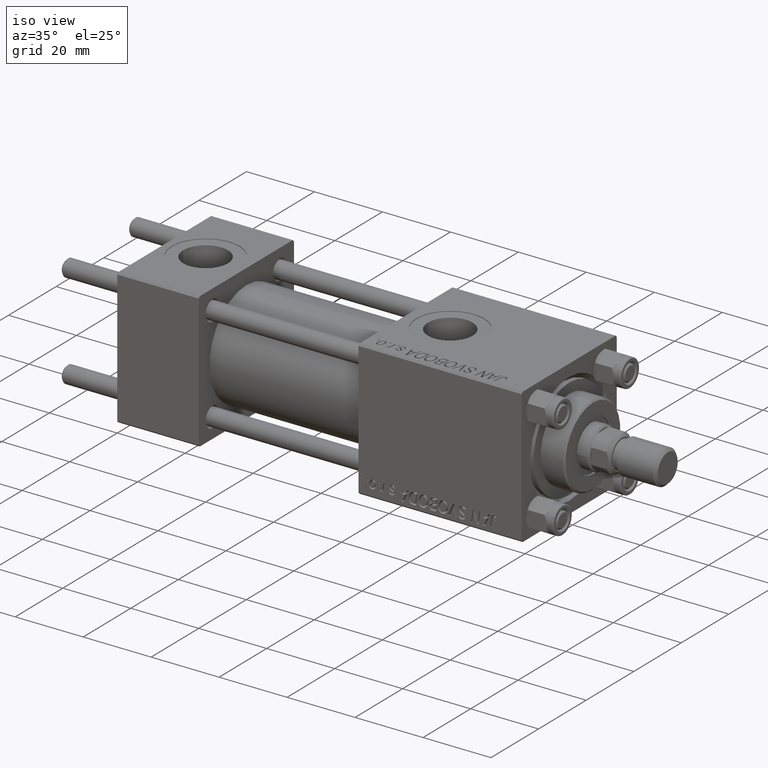
[diagram: clean part render]
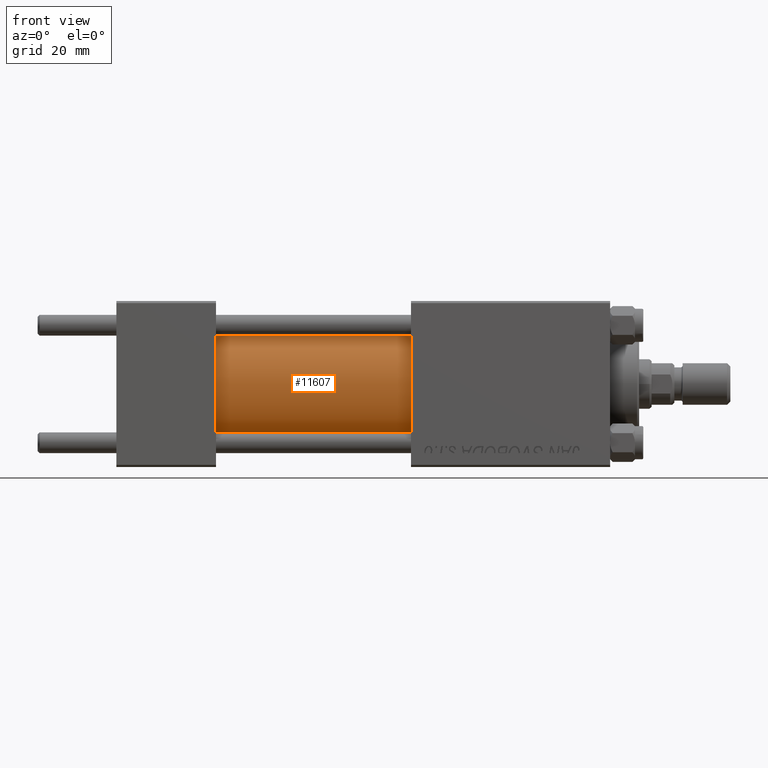
[diagram: tour spotlight — one face highlighted and labeled with its STEP entity id]
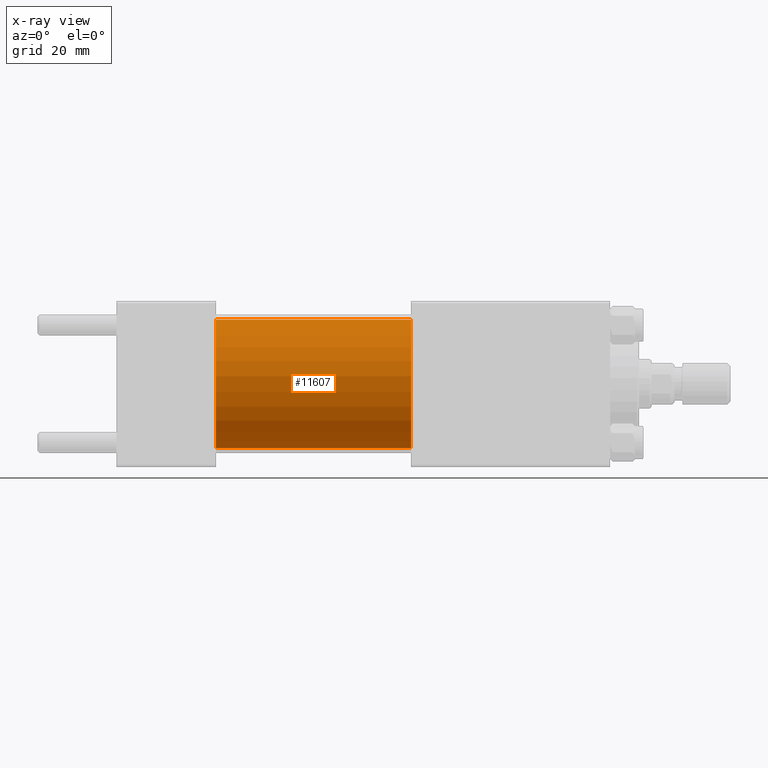
[diagram: x-ray of the same camera — body ghosted, this tour face saturated]
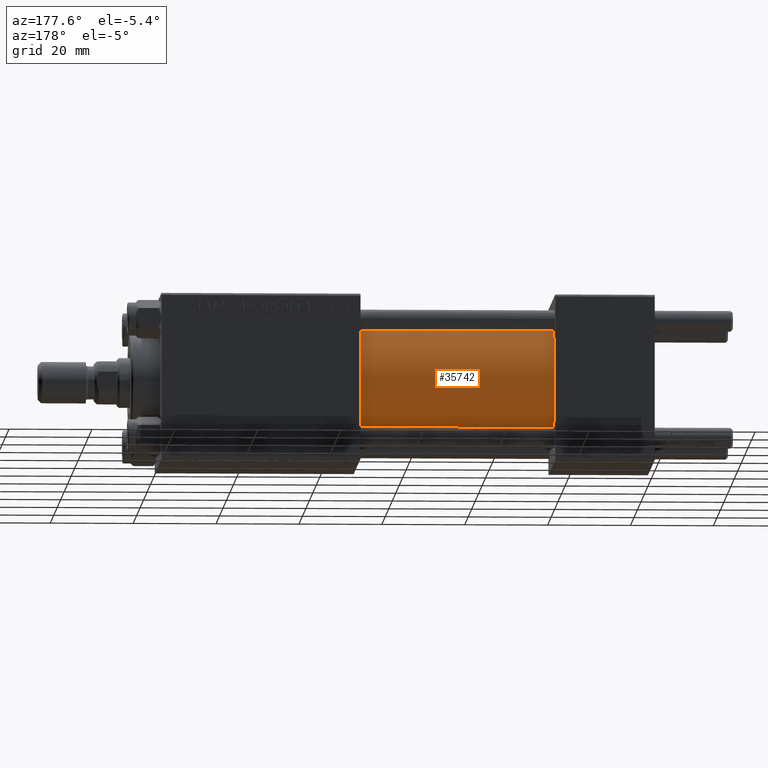
[diagram: tour spotlight — one face highlighted and labeled with its STEP entity id]
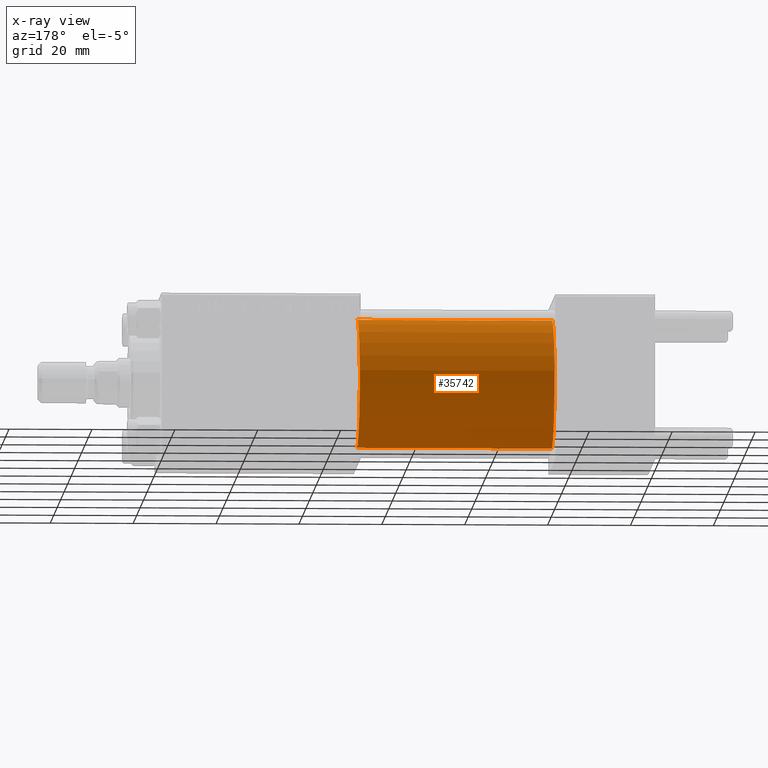
[diagram: x-ray of the same camera — body ghosted, this tour face saturated]
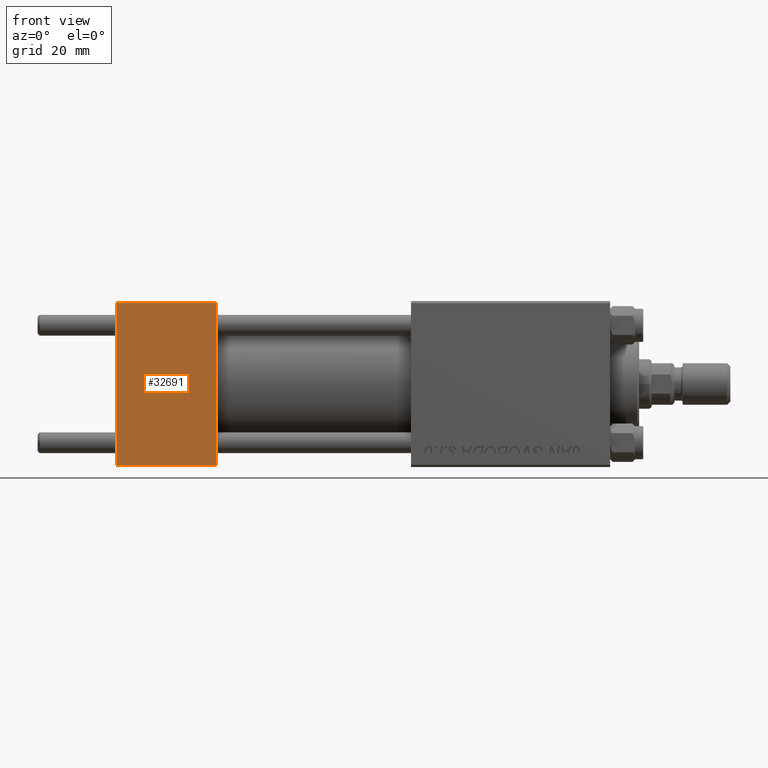
[diagram: tour spotlight — one face highlighted and labeled with its STEP entity id]
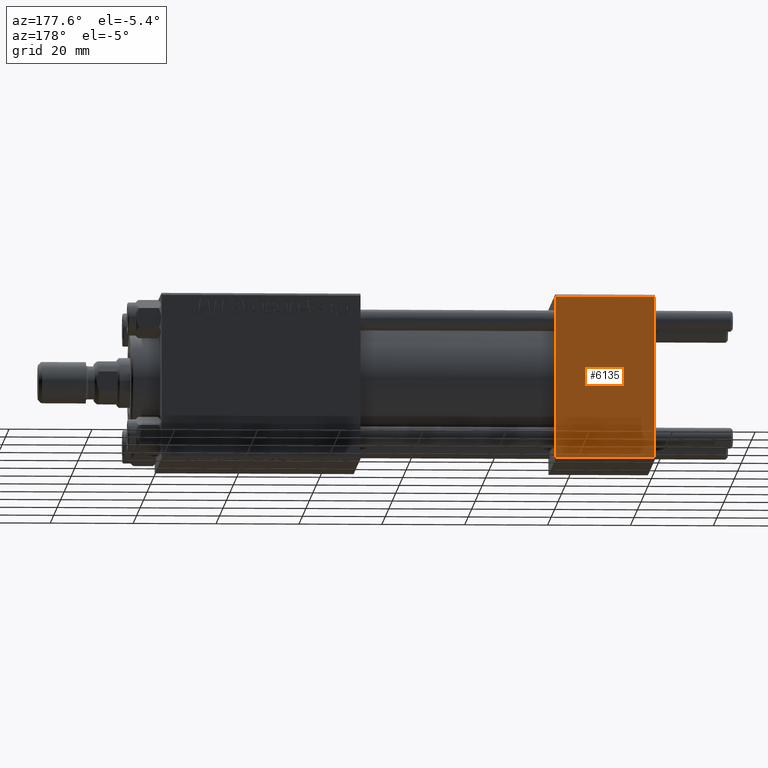
[diagram: tour spotlight — one face highlighted and labeled with its STEP entity id]
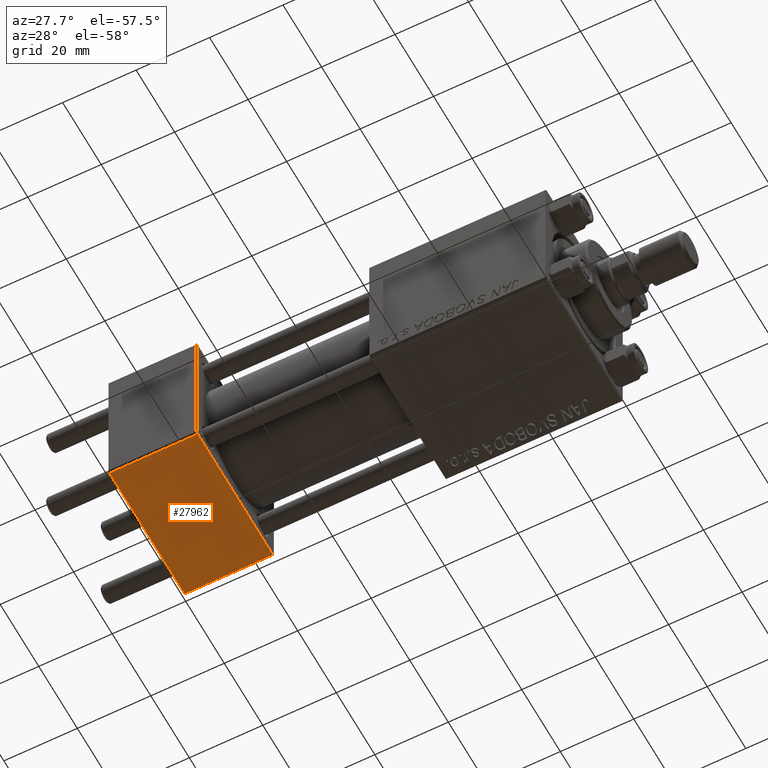
[diagram: tour spotlight — one face highlighted and labeled with its STEP entity id]
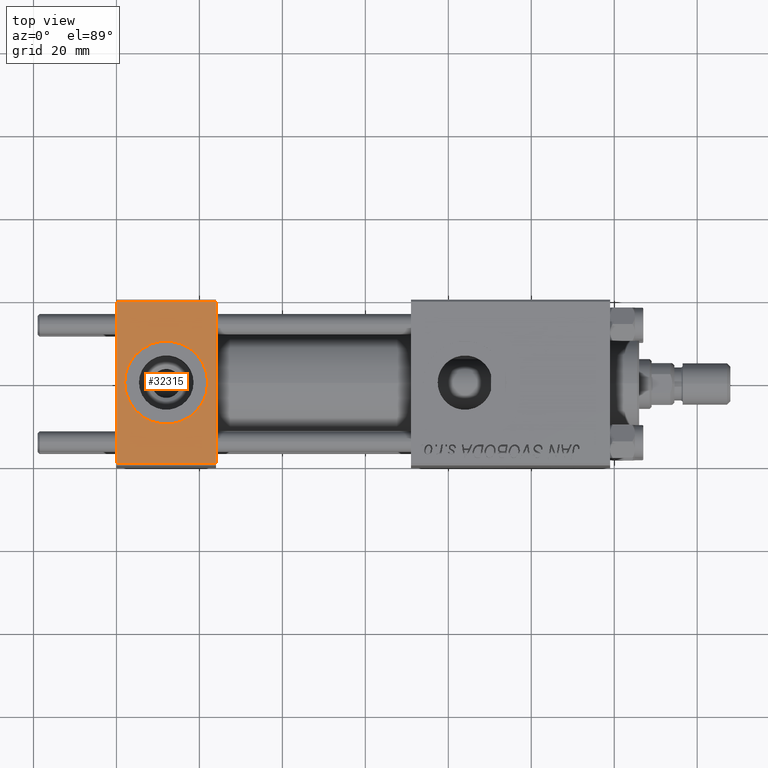
[diagram: tour spotlight — one face highlighted and labeled with its STEP entity id]
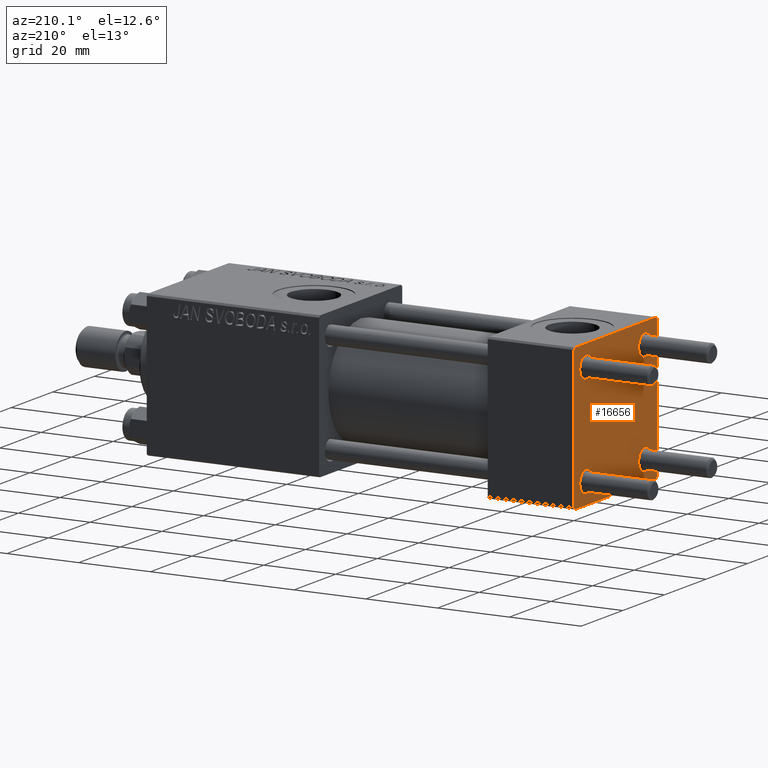
[diagram: tour spotlight — one face highlighted and labeled with its STEP entity id]
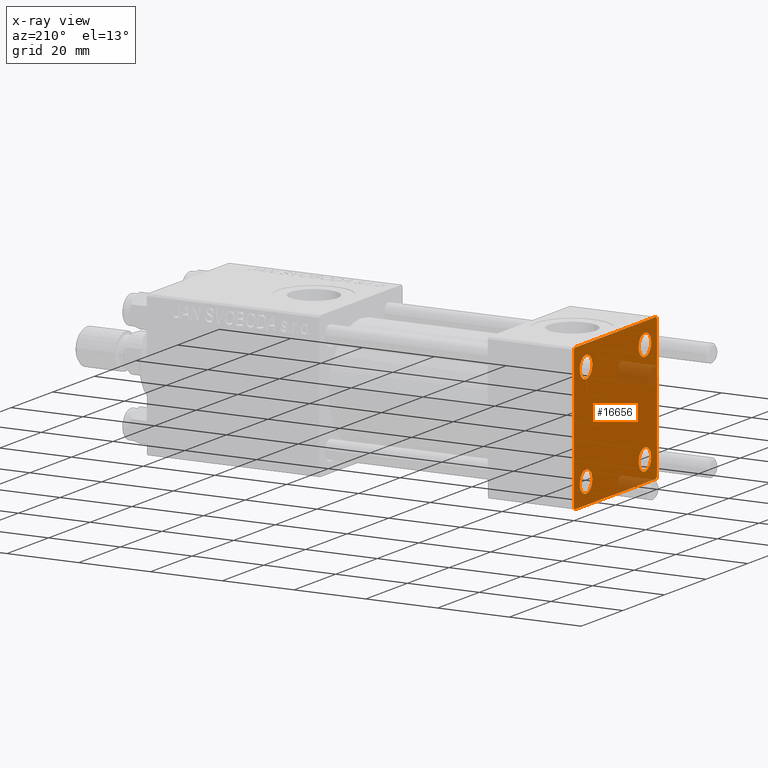
[diagram: x-ray of the same camera — body ghosted, this tour face saturated]
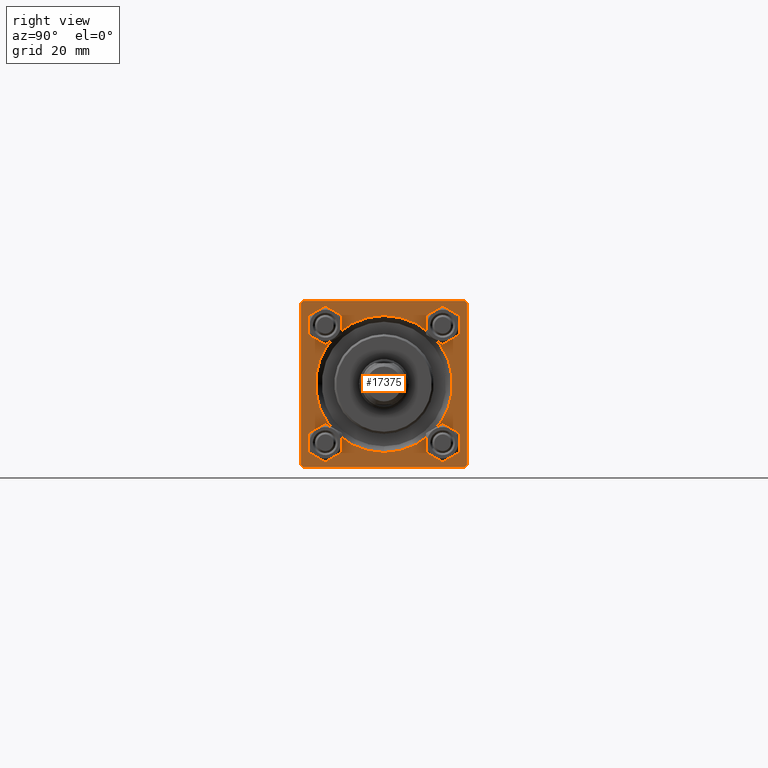
[diagram: tour spotlight — one face highlighted and labeled with its STEP entity id]
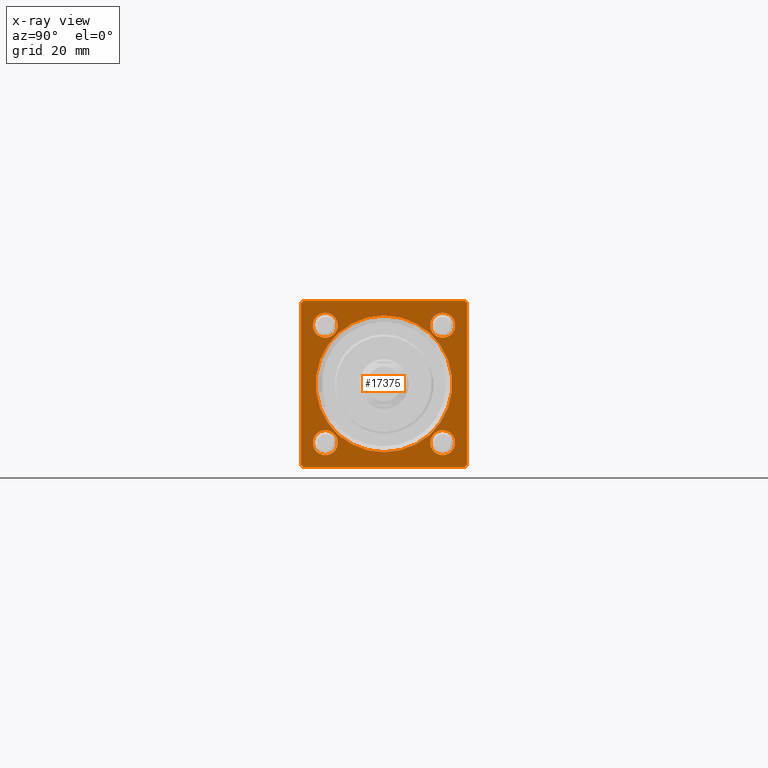
[diagram: x-ray of the same camera — body ghosted, this tour face saturated]
A machine part: a face-by-face anatomy tour. The part has 1145 B-rep faces; the first image is the clean iso view, then the 8 largest visible faces are spotlighted one at a time (largest first), each with its STEP entity span.

Face 1 — front view, entity #11607. An x-ray twin of the same camera follows (body ghosted, this face saturated) — the face is partly hidden behind the body. In plain terms, the highlighted cylindrical surface (partial cylindrical patch) has radius 15.5 mm, axis along (-1, -0, -0).
Definition (entity closure, byte-faithful):
#291 = AXIS2_PLACEMENT_3D ( 'NONE', #20581, #5864, #48775 ) ;
#795 = CARTESIAN_POINT ( 'NONE',  ( 24.00000000000000000, 0.000000000000000000, 15.50000000000000000 ) ) ;
#2607 = EDGE_CURVE ( 'NONE', #48295, #33412, #24450, .T. ) ;
#2724 = EDGE_CURVE ( 'NONE', #8842, #10512, #36654, .T. ) ;
#5454 = CARTESIAN_POINT ( 'NONE',  ( 71.00000000000001421, 0.000000000000000000, 15.50000000000000000 ) ) ;
#5864 = DIRECTION ( 'NONE',  ( -1.000000000000000000, -0.000000000000000000, -0.000000000000000000 ) ) ;
#6940 = LINE ( 'NONE', #22427, #11238 ) ;
#8355 = DIRECTION ( 'NONE',  ( 1.000000000000000000, 0.000000000000000000, 0.000000000000000000 ) ) ;
#8842 = VERTEX_POINT ( 'NONE', #5454 ) ;
#10508 = ORIENTED_EDGE ( 'NONE', *, *, #2724, .F. ) ;
#10512 = VERTEX_POINT ( 'NONE', #26277 ) ;
#11238 = VECTOR ( 'NONE', #18858, 1000.000000000000000 ) ;
#11607 = ADVANCED_FACE ( 'NONE', ( #28220 ), #43704, .T. ) ;
#14765 = AXIS2_PLACEMENT_3D ( 'NONE', #27169, #8355, #30969 ) ;
#14970 = DIRECTION ( 'NONE',  ( -1.000000000000000000, -0.000000000000000000, -0.000000000000000000 ) ) ;
#15545 = AXIS2_PLACEMENT_3D ( 'NONE', #39900, #16809, #43973 ) ;
#16809 = DIRECTION ( 'NONE',  ( 1.000000000000000000, 0.000000000000000000, 0.000000000000000000 ) ) ;
#18301 = ORIENTED_EDGE ( 'NONE', *, *, #33577, .T. ) ;
#18858 = DIRECTION ( 'NONE',  ( -1.000000000000000000, -0.000000000000000000, -0.000000000000000000 ) ) ;
#20581 = CARTESIAN_POINT ( 'NONE',  ( 71.00000000000001421, 0.000000000000000000, 0.000000000000000000 ) ) ;
#22427 = CARTESIAN_POINT ( 'NONE',  ( 71.00000000000001421, 1.898202538678397557E-15, -15.50000000000000000 ) ) ;
#24317 = EDGE_LOOP ( 'NONE', ( #40742, #10508, #18301, #27526 ) ) ;
#24450 = CIRCLE ( 'NONE', #15545, 15.50000000000000000 ) ;
#26277 = CARTESIAN_POINT ( 'NONE',  ( 71.00000000000001421, 1.898202538678397557E-15, -15.50000000000000000 ) ) ;
#27169 = CARTESIAN_POINT ( 'NONE',  ( 71.00000000000001421, 0.000000000000000000, 0.000000000000000000 ) ) ;
#27526 = ORIENTED_EDGE ( 'NONE', *, *, #2607, .T. ) ;
#28220 = FACE_OUTER_BOUND ( 'NONE', #24317, .T. ) ;
#30969 = DIRECTION ( 'NONE',  ( 0.000000000000000000, 0.000000000000000000, -1.000000000000000000 ) ) ;
#33412 = VERTEX_POINT ( 'NONE', #44465 ) ;
#33577 = EDGE_CURVE ( 'NONE', #8842, #48295, #42372, .T. ) ;
#36005 = VECTOR ( 'NONE', #14970, 1000.000000000000000 ) ;
#36654 = CIRCLE ( 'NONE', #14765, 15.50000000000000000 ) ;
#39900 = CARTESIAN_POINT ( 'NONE',  ( 24.00000000000000000, 0.000000000000000000, 0.000000000000000000 ) ) ;
#40742 = ORIENTED_EDGE ( 'NONE', *, *, #48768, .F. ) ;
#42372 = LINE ( 'NONE', #50005, #36005 ) ;
#43704 = CYLINDRICAL_SURFACE ( 'NONE', #291, 15.50000000000000000 ) ;
#43973 = DIRECTION ( 'NONE',  ( 0.000000000000000000, 0.000000000000000000, 1.000000000000000000 ) ) ;
#44465 = CARTESIAN_POINT ( 'NONE',  ( 24.00000000000000000, 1.898202538678397557E-15, -15.50000000000000000 ) ) ;
#48295 = VERTEX_POINT ( 'NONE', #795 ) ;
#48768 = EDGE_CURVE ( 'NONE', #10512, #33412, #6940, .T. ) ;
#48775 = DIRECTION ( 'NONE',  ( 0.000000000000000000, 0.000000000000000000, 1.000000000000000000 ) ) ;
#50005 = CARTESIAN_POINT ( 'NONE',  ( 71.00000000000001421, 0.000000000000000000, 15.50000000000000000 ) ) ;

Face 2 — auxiliary view, entity #35742. An x-ray twin of the same camera follows (body ghosted, this face saturated) — the face is partly hidden behind the body. In plain terms, the highlighted cylindrical surface (partial cylindrical patch) has radius 15.5 mm, axis along (-1, -0, -0).
Definition (entity closure, byte-faithful):
#795 = CARTESIAN_POINT ( 'NONE',  ( 24.00000000000000000, 0.000000000000000000, 15.50000000000000000 ) ) ;
#2900 = CIRCLE ( 'NONE', #32913, 15.50000000000000000 ) ;
#5454 = CARTESIAN_POINT ( 'NONE',  ( 71.00000000000001421, 0.000000000000000000, 15.50000000000000000 ) ) ;
#6511 = DIRECTION ( 'NONE',  ( 0.000000000000000000, 0.000000000000000000, 1.000000000000000000 ) ) ;
#6940 = LINE ( 'NONE', #22427, #11238 ) ;
#7861 = EDGE_LOOP ( 'NONE', ( #42481, #37962, #18616, #18997 ) ) ;
#8842 = VERTEX_POINT ( 'NONE', #5454 ) ;
#10512 = VERTEX_POINT ( 'NONE', #26277 ) ;
#11238 = VECTOR ( 'NONE', #18858, 1000.000000000000000 ) ;
#11747 = DIRECTION ( 'NONE',  ( 1.000000000000000000, 0.000000000000000000, 0.000000000000000000 ) ) ;
#14970 = DIRECTION ( 'NONE',  ( -1.000000000000000000, -0.000000000000000000, -0.000000000000000000 ) ) ;
#14995 = FACE_OUTER_BOUND ( 'NONE', #7861, .T. ) ;
#16220 = EDGE_CURVE ( 'NONE', #33412, #48295, #2900, .T. ) ;
#18616 = ORIENTED_EDGE ( 'NONE', *, *, #16220, .T. ) ;
#18858 = DIRECTION ( 'NONE',  ( -1.000000000000000000, -0.000000000000000000, -0.000000000000000000 ) ) ;
#18997 = ORIENTED_EDGE ( 'NONE', *, *, #33577, .F. ) ;
#22427 = CARTESIAN_POINT ( 'NONE',  ( 71.00000000000001421, 1.898202538678397557E-15, -15.50000000000000000 ) ) ;
#22854 = CYLINDRICAL_SURFACE ( 'NONE', #36075, 15.50000000000000000 ) ;
#26277 = CARTESIAN_POINT ( 'NONE',  ( 71.00000000000001421, 1.898202538678397557E-15, -15.50000000000000000 ) ) ;
#30966 = CARTESIAN_POINT ( 'NONE',  ( 71.00000000000001421, 0.000000000000000000, 0.000000000000000000 ) ) ;
#32913 = AXIS2_PLACEMENT_3D ( 'NONE', #41314, #38006, #6511 ) ;
#33412 = VERTEX_POINT ( 'NONE', #44465 ) ;
#33577 = EDGE_CURVE ( 'NONE', #8842, #48295, #42372, .T. ) ;
#35027 = DIRECTION ( 'NONE',  ( -1.000000000000000000, -0.000000000000000000, -0.000000000000000000 ) ) ;
#35742 = ADVANCED_FACE ( 'NONE', ( #14995 ), #22854, .T. ) ;
#36005 = VECTOR ( 'NONE', #14970, 1000.000000000000000 ) ;
#36075 = AXIS2_PLACEMENT_3D ( 'NONE', #30966, #35027, #46454 ) ;
#37962 = ORIENTED_EDGE ( 'NONE', *, *, #48768, .T. ) ;
#38006 = DIRECTION ( 'NONE',  ( 1.000000000000000000, 0.000000000000000000, 0.000000000000000000 ) ) ;
#40367 = DIRECTION ( 'NONE',  ( 0.000000000000000000, 0.000000000000000000, -1.000000000000000000 ) ) ;
#41314 = CARTESIAN_POINT ( 'NONE',  ( 24.00000000000000000, 0.000000000000000000, 0.000000000000000000 ) ) ;
#42372 = LINE ( 'NONE', #50005, #36005 ) ;
#42481 = ORIENTED_EDGE ( 'NONE', *, *, #45520, .F. ) ;
#43566 = AXIS2_PLACEMENT_3D ( 'NONE', #46527, #11747, #40367 ) ;
#44387 = CIRCLE ( 'NONE', #43566, 15.50000000000000000 ) ;
#44465 = CARTESIAN_POINT ( 'NONE',  ( 24.00000000000000000, 1.898202538678397557E-15, -15.50000000000000000 ) ) ;
#45520 = EDGE_CURVE ( 'NONE', #10512, #8842, #44387, .T. ) ;
#46454 = DIRECTION ( 'NONE',  ( 0.000000000000000000, 0.000000000000000000, 1.000000000000000000 ) ) ;
#46527 = CARTESIAN_POINT ( 'NONE',  ( 71.00000000000001421, 0.000000000000000000, 0.000000000000000000 ) ) ;
#48295 = VERTEX_POINT ( 'NONE', #795 ) ;
#48768 = EDGE_CURVE ( 'NONE', #10512, #33412, #6940, .T. ) ;
#50005 = CARTESIAN_POINT ( 'NONE',  ( 71.00000000000001421, 0.000000000000000000, 15.50000000000000000 ) ) ;

Face 3 — front view, entity #32691. In plain terms, the highlighted planar face has unit normal (0, 1, 0).
Definition (entity closure, byte-faithful):
#2523 = ORIENTED_EDGE ( 'NONE', *, *, #32508, .F. ) ;
#3542 = ORIENTED_EDGE ( 'NONE', *, *, #25534, .T. ) ;
#3761 = FACE_OUTER_BOUND ( 'NONE', #47376, .T. ) ;
#4310 = VERTEX_POINT ( 'NONE', #27063 ) ;
#6103 = CARTESIAN_POINT ( 'NONE',  ( 24.00000000000000000, -20.00000000000000355, 19.99999999999998934 ) ) ;
#6275 = CARTESIAN_POINT ( 'NONE',  ( 0.000000000000000000, -20.00000000000000355, 19.49999999999998224 ) ) ;
#6993 = ORIENTED_EDGE ( 'NONE', *, *, #45697, .T. ) ;
#8174 = LINE ( 'NONE', #11759, #8257 ) ;
#8257 = VECTOR ( 'NONE', #19124, 1000.000000000000000 ) ;
#8515 = ORIENTED_EDGE ( 'NONE', *, *, #45421, .T. ) ;
#10923 = CARTESIAN_POINT ( 'NONE',  ( 24.00000000000000000, -20.00000000000000355, 19.49999999999998224 ) ) ;
#11138 = VECTOR ( 'NONE', #28523, 1000.000000000000000 ) ;
#11643 = CARTESIAN_POINT ( 'NONE',  ( 24.00000000000000000, -20.00000000000000355, 19.99999999999998934 ) ) ;
#11759 = CARTESIAN_POINT ( 'NONE',  ( 0.000000000000000000, -20.00000000000000355, 19.99999999999998934 ) ) ;
#13031 = CARTESIAN_POINT ( 'NONE',  ( 24.00000000000000000, -20.00000000000000355, 19.49999999999998224 ) ) ;
#13971 = LINE ( 'NONE', #6103, #29491 ) ;
#14797 = VERTEX_POINT ( 'NONE', #10923 ) ;
#15984 = VECTOR ( 'NONE', #19606, 1000.000000000000000 ) ;
#16060 = CARTESIAN_POINT ( 'NONE',  ( 24.00000000000000000, -20.00000000000000000, -19.49999999999999645 ) ) ;
#19124 = DIRECTION ( 'NONE',  ( 0.000000000000000000, 8.673617379884036705E-17, -1.000000000000000000 ) ) ;
#19606 = DIRECTION ( 'NONE',  ( 1.000000000000000000, 0.000000000000000000, 0.000000000000000000 ) ) ;
#21148 = LINE ( 'NONE', #13031, #11138 ) ;
#25035 = VERTEX_POINT ( 'NONE', #6275 ) ;
#25534 = EDGE_CURVE ( 'NONE', #25035, #39391, #8174, .T. ) ;
#27063 = CARTESIAN_POINT ( 'NONE',  ( 24.00000000000000000, -20.00000000000000000, -19.49999999999999645 ) ) ;
#27132 = DIRECTION ( 'NONE',  ( -0.000000000000000000, 1.000000000000000000, 8.673617379884036705E-17 ) ) ;
#28523 = DIRECTION ( 'NONE',  ( -1.000000000000000000, 0.000000000000000000, 0.000000000000000000 ) ) ;
#29491 = VECTOR ( 'NONE', #36837, 1000.000000000000000 ) ;
#31697 = PLANE ( 'NONE',  #33548 ) ;
#32508 = EDGE_CURVE ( 'NONE', #14797, #4310, #13971, .T. ) ;
#32691 = ADVANCED_FACE ( 'NONE', ( #3761 ), #31697, .F. ) ;
#33548 = AXIS2_PLACEMENT_3D ( 'NONE', #11643, #27132, #42620 ) ;
#36837 = DIRECTION ( 'NONE',  ( 0.000000000000000000, 8.673617379884036705E-17, -1.000000000000000000 ) ) ;
#39391 = VERTEX_POINT ( 'NONE', #48575 ) ;
#42620 = DIRECTION ( 'NONE',  ( 0.000000000000000000, -8.673617379884036705E-17, 1.000000000000000000 ) ) ;
#45421 = EDGE_CURVE ( 'NONE', #39391, #4310, #50109, .T. ) ;
#45697 = EDGE_CURVE ( 'NONE', #14797, #25035, #21148, .T. ) ;
#47376 = EDGE_LOOP ( 'NONE', ( #3542, #8515, #2523, #6993 ) ) ;
#48575 = CARTESIAN_POINT ( 'NONE',  ( 0.000000000000000000, -20.00000000000000000, -19.49999999999999645 ) ) ;
#50109 = LINE ( 'NONE', #16060, #15984 ) ;

Face 4 — auxiliary view, entity #6135. In plain terms, the highlighted planar face has unit normal (0, 1, 0).
Definition (entity closure, byte-faithful):
#436 = CARTESIAN_POINT ( 'NONE',  ( 0.000000000000000000, 20.00000000000000000, -19.50000000000002132 ) ) ;
#876 = LINE ( 'NONE', #12837, #8323 ) ;
#1581 = CARTESIAN_POINT ( 'NONE',  ( 24.00000000000000000, 20.00000000000000000, 19.49999999999999289 ) ) ;
#3405 = CARTESIAN_POINT ( 'NONE',  ( 24.00000000000000000, 20.00000000000000000, 20.00000000000000000 ) ) ;
#6135 = ADVANCED_FACE ( 'NONE', ( #10612 ), #11531, .T. ) ;
#7020 = LINE ( 'NONE', #10824, #26973 ) ;
#7465 = DIRECTION ( 'NONE',  ( 0.000000000000000000, -0.000000000000000000, 1.000000000000000000 ) ) ;
#8126 = DIRECTION ( 'NONE',  ( 0.000000000000000000, 0.000000000000000000, -1.000000000000000000 ) ) ;
#8323 = VECTOR ( 'NONE', #47368, 1000.000000000000000 ) ;
#10310 = DIRECTION ( 'NONE',  ( 0.000000000000000000, 0.000000000000000000, -1.000000000000000000 ) ) ;
#10612 = FACE_OUTER_BOUND ( 'NONE', #11386, .T. ) ;
#10824 = CARTESIAN_POINT ( 'NONE',  ( 24.00000000000000000, 20.00000000000000000, -19.50000000000002132 ) ) ;
#11386 = EDGE_LOOP ( 'NONE', ( #19164, #26544, #16990, #45101 ) ) ;
#11531 = PLANE ( 'NONE',  #30274 ) ;
#11613 = CARTESIAN_POINT ( 'NONE',  ( 24.00000000000000000, 20.00000000000000000, -19.50000000000002132 ) ) ;
#12313 = EDGE_CURVE ( 'NONE', #22308, #14197, #37732, .T. ) ;
#12453 = LINE ( 'NONE', #16269, #23571 ) ;
#12837 = CARTESIAN_POINT ( 'NONE',  ( 24.00000000000000000, 20.00000000000000000, 19.49999999999999289 ) ) ;
#14197 = VERTEX_POINT ( 'NONE', #11613 ) ;
#14691 = CARTESIAN_POINT ( 'NONE',  ( 0.000000000000000000, 20.00000000000000000, 19.49999999999999289 ) ) ;
#16269 = CARTESIAN_POINT ( 'NONE',  ( 0.000000000000000000, 20.00000000000000000, 20.00000000000000000 ) ) ;
#16990 = ORIENTED_EDGE ( 'NONE', *, *, #22701, .F. ) ;
#19164 = ORIENTED_EDGE ( 'NONE', *, *, #12313, .T. ) ;
#22308 = VERTEX_POINT ( 'NONE', #1581 ) ;
#22701 = EDGE_CURVE ( 'NONE', #47450, #24830, #12453, .T. ) ;
#23571 = VECTOR ( 'NONE', #8126, 1000.000000000000000 ) ;
#24830 = VERTEX_POINT ( 'NONE', #436 ) ;
#26182 = EDGE_CURVE ( 'NONE', #14197, #24830, #7020, .T. ) ;
#26544 = ORIENTED_EDGE ( 'NONE', *, *, #26182, .T. ) ;
#26973 = VECTOR ( 'NONE', #46355, 1000.000000000000000 ) ;
#27831 = EDGE_CURVE ( 'NONE', #47450, #22308, #876, .T. ) ;
#30274 = AXIS2_PLACEMENT_3D ( 'NONE', #44655, #41594, #7465 ) ;
#37732 = LINE ( 'NONE', #3405, #44918 ) ;
#41594 = DIRECTION ( 'NONE',  ( -0.000000000000000000, 1.000000000000000000, 0.000000000000000000 ) ) ;
#44655 = CARTESIAN_POINT ( 'NONE',  ( 24.00000000000000000, 20.00000000000000000, 20.00000000000000000 ) ) ;
#44918 = VECTOR ( 'NONE', #10310, 1000.000000000000000 ) ;
#45101 = ORIENTED_EDGE ( 'NONE', *, *, #27831, .T. ) ;
#46355 = DIRECTION ( 'NONE',  ( -1.000000000000000000, 0.000000000000000000, 0.000000000000000000 ) ) ;
#47368 = DIRECTION ( 'NONE',  ( 1.000000000000000000, 0.000000000000000000, 0.000000000000000000 ) ) ;
#47450 = VERTEX_POINT ( 'NONE', #14691 ) ;

Face 5 — auxiliary view, entity #27962. In plain terms, the highlighted planar face has unit normal (0, -0, -1).
Definition (entity closure, byte-faithful):
#1849 = AXIS2_PLACEMENT_3D ( 'NONE', #33899, #26030, #10036 ) ;
#2113 = LINE ( 'NONE', #24212, #7632 ) ;
#3377 = CARTESIAN_POINT ( 'NONE',  ( 24.00000000000000000, 20.00000000000000000, -20.00000000000000711 ) ) ;
#5974 = FACE_OUTER_BOUND ( 'NONE', #7072, .T. ) ;
#6637 = CARTESIAN_POINT ( 'NONE',  ( 0.000000000000000000, 19.50000000000000711, -20.00000000000000711 ) ) ;
#7072 = EDGE_LOOP ( 'NONE', ( #10545, #22254, #13686, #27895 ) ) ;
#7632 = VECTOR ( 'NONE', #9224, 1000.000000000000000 ) ;
#8913 = VERTEX_POINT ( 'NONE', #33389 ) ;
#9224 = DIRECTION ( 'NONE',  ( -1.000000000000000000, 0.000000000000000000, 0.000000000000000000 ) ) ;
#9578 = DIRECTION ( 'NONE',  ( 1.000000000000000000, 0.000000000000000000, 0.000000000000000000 ) ) ;
#9805 = DIRECTION ( 'NONE',  ( 0.000000000000000000, -1.000000000000000000, 1.734723475976807094E-16 ) ) ;
#10036 = DIRECTION ( 'NONE',  ( 0.000000000000000000, 1.000000000000000000, -1.734723475976806848E-16 ) ) ;
#10545 = ORIENTED_EDGE ( 'NONE', *, *, #46475, .F. ) ;
#12468 = VECTOR ( 'NONE', #9578, 1000.000000000000000 ) ;
#13686 = ORIENTED_EDGE ( 'NONE', *, *, #38252, .T. ) ;
#17366 = CARTESIAN_POINT ( 'NONE',  ( 24.00000000000000000, 19.50000000000000711, -20.00000000000000711 ) ) ;
#22254 = ORIENTED_EDGE ( 'NONE', *, *, #30605, .T. ) ;
#24212 = CARTESIAN_POINT ( 'NONE',  ( 0.000000000000000000, -19.50000000000000711, -20.00000000000000000 ) ) ;
#26030 = DIRECTION ( 'NONE',  ( 0.000000000000000000, -1.734723475976806848E-16, -1.000000000000000000 ) ) ;
#27863 = CARTESIAN_POINT ( 'NONE',  ( 24.00000000000000000, 19.50000000000000711, -20.00000000000000711 ) ) ;
#27895 = ORIENTED_EDGE ( 'NONE', *, *, #34490, .T. ) ;
#27962 = ADVANCED_FACE ( 'NONE', ( #5974 ), #36963, .T. ) ;
#28025 = VERTEX_POINT ( 'NONE', #31318 ) ;
#30605 = EDGE_CURVE ( 'NONE', #36423, #46893, #39547, .T. ) ;
#31318 = CARTESIAN_POINT ( 'NONE',  ( 24.00000000000000000, -19.50000000000000711, -20.00000000000000000 ) ) ;
#31905 = CARTESIAN_POINT ( 'NONE',  ( 0.000000000000000000, 20.00000000000000000, -20.00000000000000711 ) ) ;
#33389 = CARTESIAN_POINT ( 'NONE',  ( 0.000000000000000000, -19.50000000000000711, -20.00000000000000000 ) ) ;
#33899 = CARTESIAN_POINT ( 'NONE',  ( 24.00000000000000000, 20.00000000000000000, -20.00000000000000711 ) ) ;
#34490 = EDGE_CURVE ( 'NONE', #28025, #8913, #2113, .T. ) ;
#36423 = VERTEX_POINT ( 'NONE', #6637 ) ;
#36729 = LINE ( 'NONE', #31905, #46881 ) ;
#36963 = PLANE ( 'NONE',  #1849 ) ;
#37954 = LINE ( 'NONE', #3377, #45089 ) ;
#38252 = EDGE_CURVE ( 'NONE', #46893, #28025, #37954, .T. ) ;
#39547 = LINE ( 'NONE', #27863, #12468 ) ;
#45089 = VECTOR ( 'NONE', #49623, 1000.000000000000000 ) ;
#46475 = EDGE_CURVE ( 'NONE', #36423, #8913, #36729, .T. ) ;
#46881 = VECTOR ( 'NONE', #9805, 1000.000000000000000 ) ;
#46893 = VERTEX_POINT ( 'NONE', #17366 ) ;
#49623 = DIRECTION ( 'NONE',  ( 0.000000000000000000, -1.000000000000000000, 1.734723475976807094E-16 ) ) ;

Face 6 — top view, entity #32315. In plain terms, the highlighted planar face has unit normal (0, 0, -1).
Definition (entity closure, byte-faithful):
#1121 = AXIS2_PLACEMENT_3D ( 'NONE', #27233, #15064, #33870 ) ;
#2576 = VERTEX_POINT ( 'NONE', #48298 ) ;
#2589 = FACE_BOUND ( 'NONE', #44072, .T. ) ;
#2773 = CIRCLE ( 'NONE', #1121, 9.999999999999998224 ) ;
#3759 = EDGE_CURVE ( 'NONE', #38713, #15715, #18759, .T. ) ;
#3940 = LINE ( 'NONE', #46611, #42801 ) ;
#4652 = EDGE_CURVE ( 'NONE', #21969, #19405, #14833, .T. ) ;
#6794 = ORIENTED_EDGE ( 'NONE', *, *, #27942, .T. ) ;
#6972 = LINE ( 'NONE', #11769, #14846 ) ;
#7292 = ORIENTED_EDGE ( 'NONE', *, *, #4652, .F. ) ;
#7315 = DIRECTION ( 'NONE',  ( 0.000000000000000000, -1.000000000000000000, -2.602085213965210149E-16 ) ) ;
#9169 = EDGE_LOOP ( 'NONE', ( #34401, #6794, #46865, #47326 ) ) ;
#10297 = LINE ( 'NONE', #17902, #19721 ) ;
#10537 = DIRECTION ( 'NONE',  ( 1.000000000000000000, 0.000000000000000000, 0.000000000000000000 ) ) ;
#10718 = FACE_OUTER_BOUND ( 'NONE', #9169, .T. ) ;
#11447 = DIRECTION ( 'NONE',  ( 0.000000000000000000, 1.000000000000000000, 2.602085213965210149E-16 ) ) ;
#11478 = VERTEX_POINT ( 'NONE', #29289 ) ;
#11769 = CARTESIAN_POINT ( 'NONE',  ( 0.000000000000000000, 20.00000000000000000, 20.00000000000000000 ) ) ;
#14833 = CIRCLE ( 'NONE', #43188, 9.999999999999998224 ) ;
#14846 = VECTOR ( 'NONE', #30812, 1000.000000000000000 ) ;
#15021 = PLANE ( 'NONE',  #41641 ) ;
#15064 = DIRECTION ( 'NONE',  ( 0.000000000000000000, 0.000000000000000000, 1.000000000000000000 ) ) ;
#15715 = VERTEX_POINT ( 'NONE', #22849 ) ;
#17902 = CARTESIAN_POINT ( 'NONE',  ( 24.00000000000000000, -19.49999999999999289, 19.99999999999998934 ) ) ;
#18759 = LINE ( 'NONE', #41630, #21268 ) ;
#18893 = DIRECTION ( 'NONE',  ( 0.000000000000000000, 0.000000000000000000, 1.000000000000000000 ) ) ;
#19405 = VERTEX_POINT ( 'NONE', #40266 ) ;
#19721 = VECTOR ( 'NONE', #10537, 1000.000000000000000 ) ;
#20196 = EDGE_CURVE ( 'NONE', #38713, #11478, #3940, .T. ) ;
#21268 = VECTOR ( 'NONE', #7315, 1000.000000000000000 ) ;
#21969 = VERTEX_POINT ( 'NONE', #28574 ) ;
#22465 = CARTESIAN_POINT ( 'NONE',  ( 12.00000000000000000, 1.540743955509788682E-30, 19.99999999999999645 ) ) ;
#22509 = DIRECTION ( 'NONE',  ( -1.000000000000000000, 0.000000000000000000, 0.000000000000000000 ) ) ;
#22849 = CARTESIAN_POINT ( 'NONE',  ( 24.00000000000000000, -19.49999999999999289, 19.99999999999998934 ) ) ;
#26937 = CARTESIAN_POINT ( 'NONE',  ( 24.00000000000000000, 20.00000000000000000, 20.00000000000000000 ) ) ;
#27233 = CARTESIAN_POINT ( 'NONE',  ( 12.00000000000000000, 1.540743955509788682E-30, 19.99999999999999645 ) ) ;
#27942 = EDGE_CURVE ( 'NONE', #2576, #15715, #10297, .T. ) ;
#28198 = EDGE_CURVE ( 'NONE', #11478, #2576, #6972, .T. ) ;
#28438 = CARTESIAN_POINT ( 'NONE',  ( 24.00000000000000000, 19.50000000000000000, 20.00000000000000000 ) ) ;
#28574 = CARTESIAN_POINT ( 'NONE',  ( 2.000000000000003553, 1.224646799147354440E-15, 19.99999999999999645 ) ) ;
#29289 = CARTESIAN_POINT ( 'NONE',  ( 0.000000000000000000, 19.50000000000000000, 20.00000000000000000 ) ) ;
#30201 = EDGE_CURVE ( 'NONE', #19405, #21969, #2773, .T. ) ;
#30579 = DIRECTION ( 'NONE',  ( 1.000000000000000000, 0.000000000000000000, 0.000000000000000000 ) ) ;
#30812 = DIRECTION ( 'NONE',  ( 0.000000000000000000, -1.000000000000000000, -2.602085213965210149E-16 ) ) ;
#30932 = ORIENTED_EDGE ( 'NONE', *, *, #30201, .F. ) ;
#32315 = ADVANCED_FACE ( 'NONE', ( #2589, #10718 ), #15021, .F. ) ;
#33870 = DIRECTION ( 'NONE',  ( 1.000000000000000000, 0.000000000000000000, 0.000000000000000000 ) ) ;
#34309 = DIRECTION ( 'NONE',  ( 0.000000000000000000, 2.602085213965210149E-16, -1.000000000000000000 ) ) ;
#34401 = ORIENTED_EDGE ( 'NONE', *, *, #28198, .T. ) ;
#38713 = VERTEX_POINT ( 'NONE', #28438 ) ;
#40266 = CARTESIAN_POINT ( 'NONE',  ( 22.00000000000000000, 1.540743955509788682E-30, 19.99999999999999645 ) ) ;
#41630 = CARTESIAN_POINT ( 'NONE',  ( 24.00000000000000000, 20.00000000000000000, 20.00000000000000000 ) ) ;
#41641 = AXIS2_PLACEMENT_3D ( 'NONE', #26937, #34309, #11447 ) ;
#42801 = VECTOR ( 'NONE', #22509, 1000.000000000000000 ) ;
#43188 = AXIS2_PLACEMENT_3D ( 'NONE', #22465, #18893, #30579 ) ;
#44072 = EDGE_LOOP ( 'NONE', ( #30932, #7292 ) ) ;
#46611 = CARTESIAN_POINT ( 'NONE',  ( 0.000000000000000000, 19.50000000000000000, 20.00000000000000000 ) ) ;
#46865 = ORIENTED_EDGE ( 'NONE', *, *, #3759, .F. ) ;
#47326 = ORIENTED_EDGE ( 'NONE', *, *, #20196, .T. ) ;
#48298 = CARTESIAN_POINT ( 'NONE',  ( 0.000000000000000000, -19.49999999999999289, 19.99999999999998934 ) ) ;

Face 7 — auxiliary view, entity #16656. An x-ray twin of the same camera follows (body ghosted, this face saturated) — the face is partly hidden behind the body. In plain terms, the highlighted planar face has unit normal (-1, 0, 0).
Definition (entity closure, byte-faithful):
#179 = EDGE_CURVE ( 'NONE', #30886, #37948, #13047, .T. ) ;
#436 = CARTESIAN_POINT ( 'NONE',  ( 0.000000000000000000, 20.00000000000000000, -19.50000000000002132 ) ) ;
#1245 = EDGE_CURVE ( 'NONE', #8357, #44584, #17151, .T. ) ;
#2576 = VERTEX_POINT ( 'NONE', #48298 ) ;
#2726 = VERTEX_POINT ( 'NONE', #27427 ) ;
#2823 = LINE ( 'NONE', #3312, #18253 ) ;
#3312 = CARTESIAN_POINT ( 'NONE',  ( -0.000000000000000000, -19.74999999999992539, 19.75000000000006395 ) ) ;
#3492 = DIRECTION ( 'NONE',  ( 1.000000000000000000, 0.000000000000000000, 0.000000000000000000 ) ) ;
#3504 = VECTOR ( 'NONE', #12535, 999.9999999999998863 ) ;
#3632 = ORIENTED_EDGE ( 'NONE', *, *, #179, .T. ) ;
#3935 = EDGE_LOOP ( 'NONE', ( #39171, #6933, #32752, #31579, #35472, #9242, #33921, #29943 ) ) ;
#4793 = DIRECTION ( 'NONE',  ( 1.000000000000000000, 0.000000000000000000, 0.000000000000000000 ) ) ;
#4808 = FACE_OUTER_BOUND ( 'NONE', #3935, .T. ) ;
#5197 = DIRECTION ( 'NONE',  ( 1.000000000000000000, 0.000000000000000000, 0.000000000000000000 ) ) ;
#5202 = AXIS2_PLACEMENT_3D ( 'NONE', #24216, #38714, #15857 ) ;
#5287 = CIRCLE ( 'NONE', #7703, 3.000000000000000888 ) ;
#6190 = EDGE_CURVE ( 'NONE', #11478, #47450, #35395, .T. ) ;
#6275 = CARTESIAN_POINT ( 'NONE',  ( 0.000000000000000000, -20.00000000000000355, 19.49999999999998224 ) ) ;
#6499 = DIRECTION ( 'NONE',  ( 0.000000000000000000, 0.000000000000000000, 1.000000000000000000 ) ) ;
#6550 = CARTESIAN_POINT ( 'NONE',  ( 0.000000000000000000, 14.14999999999999858, -14.15000000000000036 ) ) ;
#6637 = CARTESIAN_POINT ( 'NONE',  ( 0.000000000000000000, 19.50000000000000711, -20.00000000000000711 ) ) ;
#6933 = ORIENTED_EDGE ( 'NONE', *, *, #19814, .T. ) ;
#6972 = LINE ( 'NONE', #11769, #14846 ) ;
#7703 = AXIS2_PLACEMENT_3D ( 'NONE', #39100, #8360, #43420 ) ;
#8126 = DIRECTION ( 'NONE',  ( 0.000000000000000000, 0.000000000000000000, -1.000000000000000000 ) ) ;
#8174 = LINE ( 'NONE', #11759, #8257 ) ;
#8257 = VECTOR ( 'NONE', #19124, 1000.000000000000000 ) ;
#8357 = VERTEX_POINT ( 'NONE', #21577 ) ;
#8360 = DIRECTION ( 'NONE',  ( 1.000000000000000000, 0.000000000000000000, 0.000000000000000000 ) ) ;
#8448 = CIRCLE ( 'NONE', #5202, 3.000000000000000888 ) ;
#8609 = FACE_BOUND ( 'NONE', #45597, .T. ) ;
#8913 = VERTEX_POINT ( 'NONE', #33389 ) ;
#9242 = ORIENTED_EDGE ( 'NONE', *, *, #36356, .T. ) ;
#9805 = DIRECTION ( 'NONE',  ( 0.000000000000000000, -1.000000000000000000, 1.734723475976807094E-16 ) ) ;
#10320 = DIRECTION ( 'NONE',  ( 1.000000000000000000, 0.000000000000000000, 0.000000000000000000 ) ) ;
#11456 = AXIS2_PLACEMENT_3D ( 'NONE', #6550, #17744, #22038 ) ;
#11478 = VERTEX_POINT ( 'NONE', #29289 ) ;
#11759 = CARTESIAN_POINT ( 'NONE',  ( 0.000000000000000000, -20.00000000000000355, 19.99999999999998934 ) ) ;
#11769 = CARTESIAN_POINT ( 'NONE',  ( 0.000000000000000000, 20.00000000000000000, 20.00000000000000000 ) ) ;
#12264 = CIRCLE ( 'NONE', #11456, 3.000000000000000888 ) ;
#12432 = FACE_BOUND ( 'NONE', #49152, .T. ) ;
#12453 = LINE ( 'NONE', #16269, #23571 ) ;
#12535 = DIRECTION ( 'NONE',  ( 0.000000000000000000, 0.7071067811865425767, -0.7071067811865525687 ) ) ;
#13015 = ORIENTED_EDGE ( 'NONE', *, *, #23333, .T. ) ;
#13047 = CIRCLE ( 'NONE', #39002, 3.000000000000000888 ) ;
#13234 = EDGE_CURVE ( 'NONE', #37948, #30886, #8448, .T. ) ;
#14691 = CARTESIAN_POINT ( 'NONE',  ( 0.000000000000000000, 20.00000000000000000, 19.49999999999999289 ) ) ;
#14846 = VECTOR ( 'NONE', #30812, 1000.000000000000000 ) ;
#15316 = LINE ( 'NONE', #38914, #18473 ) ;
#15492 = DIRECTION ( 'NONE',  ( -1.000000000000000000, 0.000000000000000000, -0.000000000000000000 ) ) ;
#15730 = CARTESIAN_POINT ( 'NONE',  ( 0.000000000000000000, -14.14999999999999503, -11.15000000000000391 ) ) ;
#15857 = DIRECTION ( 'NONE',  ( 0.000000000000000000, 0.000000000000000000, 1.000000000000000000 ) ) ;
#16144 = CARTESIAN_POINT ( 'NONE',  ( 0.000000000000000000, 14.14999999999999858, -14.15000000000000036 ) ) ;
#16269 = CARTESIAN_POINT ( 'NONE',  ( 0.000000000000000000, 20.00000000000000000, 20.00000000000000000 ) ) ;
#16495 = CARTESIAN_POINT ( 'NONE',  ( 0.000000000000000000, 0.000000000000000000, 0.000000000000000000 ) ) ;
#16656 = ADVANCED_FACE ( 'NONE', ( #12432, #42407, #43415, #8609, #4808 ), #35794, .T. ) ;
#17151 = CIRCLE ( 'NONE', #31751, 3.000000000000000888 ) ;
#17351 = DIRECTION ( 'NONE',  ( -0.000000000000000000, -0.7071067811865524577, -0.7071067811865426878 ) ) ;
#17744 = DIRECTION ( 'NONE',  ( 1.000000000000000000, 0.000000000000000000, 0.000000000000000000 ) ) ;
#18253 = VECTOR ( 'NONE', #30008, 1000.000000000000114 ) ;
#18473 = VECTOR ( 'NONE', #34847, 1000.000000000000000 ) ;
#18691 = CARTESIAN_POINT ( 'NONE',  ( 0.000000000000000000, -14.14999999999999503, 11.15000000000000213 ) ) ;
#19124 = DIRECTION ( 'NONE',  ( 0.000000000000000000, 8.673617379884036705E-17, -1.000000000000000000 ) ) ;
#19527 = CARTESIAN_POINT ( 'NONE',  ( 0.000000000000000000, -14.14999999999999503, 14.15000000000000391 ) ) ;
#19541 = AXIS2_PLACEMENT_3D ( 'NONE', #45107, #10320, #6499 ) ;
#19814 = EDGE_CURVE ( 'NONE', #24830, #36423, #48340, .T. ) ;
#20515 = EDGE_LOOP ( 'NONE', ( #13015, #31759 ) ) ;
#20688 = DIRECTION ( 'NONE',  ( 0.000000000000000000, 0.000000000000000000, 1.000000000000000000 ) ) ;
#21215 = ORIENTED_EDGE ( 'NONE', *, *, #26302, .T. ) ;
#21577 = CARTESIAN_POINT ( 'NONE',  ( 0.000000000000000000, -14.14999999999999503, -17.15000000000000568 ) ) ;
#22038 = DIRECTION ( 'NONE',  ( 0.000000000000000000, 0.000000000000000000, 1.000000000000000000 ) ) ;
#22133 = CIRCLE ( 'NONE', #31830, 3.000000000000000888 ) ;
#22701 = EDGE_CURVE ( 'NONE', #47450, #24830, #12453, .T. ) ;
#23039 = EDGE_CURVE ( 'NONE', #49529, #30106, #12264, .T. ) ;
#23333 = EDGE_CURVE ( 'NONE', #44584, #8357, #26872, .T. ) ;
#23571 = VECTOR ( 'NONE', #8126, 1000.000000000000000 ) ;
#23592 = DIRECTION ( 'NONE',  ( 0.000000000000000000, 0.000000000000000000, 1.000000000000000000 ) ) ;
#23746 = CARTESIAN_POINT ( 'NONE',  ( 0.000000000000000000, -14.14999999999999503, 17.15000000000000568 ) ) ;
#24216 = CARTESIAN_POINT ( 'NONE',  ( 0.000000000000000000, -14.14999999999999503, 14.15000000000000391 ) ) ;
#24830 = VERTEX_POINT ( 'NONE', #436 ) ;
#25035 = VERTEX_POINT ( 'NONE', #6275 ) ;
#25534 = EDGE_CURVE ( 'NONE', #25035, #39391, #8174, .T. ) ;
#26302 = EDGE_CURVE ( 'NONE', #41535, #2726, #41602, .T. ) ;
#26373 = CARTESIAN_POINT ( 'NONE',  ( 0.000000000000000000, -14.14999999999999503, -14.15000000000000391 ) ) ;
#26872 = CIRCLE ( 'NONE', #19541, 3.000000000000000888 ) ;
#27041 = EDGE_CURVE ( 'NONE', #30106, #49529, #22133, .T. ) ;
#27427 = CARTESIAN_POINT ( 'NONE',  ( 0.000000000000000000, 14.14999999999999858, 11.14999999999999858 ) ) ;
#28198 = EDGE_CURVE ( 'NONE', #11478, #2576, #6972, .T. ) ;
#29289 = CARTESIAN_POINT ( 'NONE',  ( 0.000000000000000000, 19.50000000000000000, 20.00000000000000000 ) ) ;
#29943 = ORIENTED_EDGE ( 'NONE', *, *, #6190, .T. ) ;
#29947 = DIRECTION ( 'NONE',  ( 0.000000000000000000, 0.000000000000000000, 1.000000000000000000 ) ) ;
#30008 = DIRECTION ( 'NONE',  ( -0.000000000000000000, 0.7071067811865500152, 0.7071067811865451302 ) ) ;
#30106 = VERTEX_POINT ( 'NONE', #40738 ) ;
#30305 = CARTESIAN_POINT ( 'NONE',  ( 0.000000000000000000, 14.14999999999999858, 17.15000000000000568 ) ) ;
#30812 = DIRECTION ( 'NONE',  ( 0.000000000000000000, -1.000000000000000000, -2.602085213965210149E-16 ) ) ;
#30831 = ORIENTED_EDGE ( 'NONE', *, *, #27041, .T. ) ;
#30886 = VERTEX_POINT ( 'NONE', #23746 ) ;
#30970 = DIRECTION ( 'NONE',  ( -0.000000000000000000, 0.000000000000000000, 1.000000000000000000 ) ) ;
#31030 = AXIS2_PLACEMENT_3D ( 'NONE', #40686, #36629, #33076 ) ;
#31579 = ORIENTED_EDGE ( 'NONE', *, *, #45448, .T. ) ;
#31751 = AXIS2_PLACEMENT_3D ( 'NONE', #26373, #3492, #29947 ) ;
#31759 = ORIENTED_EDGE ( 'NONE', *, *, #1245, .T. ) ;
#31830 = AXIS2_PLACEMENT_3D ( 'NONE', #16144, #5197, #20688 ) ;
#31905 = CARTESIAN_POINT ( 'NONE',  ( 0.000000000000000000, 20.00000000000000000, -20.00000000000000711 ) ) ;
#32752 = ORIENTED_EDGE ( 'NONE', *, *, #46475, .T. ) ;
#33076 = DIRECTION ( 'NONE',  ( 0.000000000000000000, 0.000000000000000000, 1.000000000000000000 ) ) ;
#33389 = CARTESIAN_POINT ( 'NONE',  ( 0.000000000000000000, -19.50000000000000711, -20.00000000000000000 ) ) ;
#33855 = VECTOR ( 'NONE', #17351, 1000.000000000000000 ) ;
#33921 = ORIENTED_EDGE ( 'NONE', *, *, #28198, .F. ) ;
#34847 = DIRECTION ( 'NONE',  ( 0.000000000000000000, -0.7071067811865401342, 0.7071067811865549002 ) ) ;
#35140 = CARTESIAN_POINT ( 'NONE',  ( -0.000000000000000000, 19.75000000000013500, 19.74999999999986144 ) ) ;
#35395 = LINE ( 'NONE', #35140, #3504 ) ;
#35472 = ORIENTED_EDGE ( 'NONE', *, *, #25534, .F. ) ;
#35794 = PLANE ( 'NONE',  #36130 ) ;
#36130 = AXIS2_PLACEMENT_3D ( 'NONE', #16495, #15492, #30970 ) ;
#36356 = EDGE_CURVE ( 'NONE', #25035, #2576, #2823, .T. ) ;
#36423 = VERTEX_POINT ( 'NONE', #6637 ) ;
#36580 = EDGE_CURVE ( 'NONE', #2726, #41535, #5287, .T. ) ;
#36629 = DIRECTION ( 'NONE',  ( 1.000000000000000000, 0.000000000000000000, 0.000000000000000000 ) ) ;
#36729 = LINE ( 'NONE', #31905, #46881 ) ;
#36916 = CARTESIAN_POINT ( 'NONE',  ( -0.000000000000000000, 19.74999999999986855, -19.75000000000014211 ) ) ;
#37835 = EDGE_LOOP ( 'NONE', ( #30831, #49738 ) ) ;
#37841 = ORIENTED_EDGE ( 'NONE', *, *, #36580, .T. ) ;
#37948 = VERTEX_POINT ( 'NONE', #18691 ) ;
#38714 = DIRECTION ( 'NONE',  ( 1.000000000000000000, 0.000000000000000000, 0.000000000000000000 ) ) ;
#38914 = CARTESIAN_POINT ( 'NONE',  ( 0.000000000000000000, -19.75000000000020961, -19.74999999999979394 ) ) ;
#39002 = AXIS2_PLACEMENT_3D ( 'NONE', #19527, #4793, #23592 ) ;
#39100 = CARTESIAN_POINT ( 'NONE',  ( 0.000000000000000000, 14.14999999999999858, 14.15000000000000036 ) ) ;
#39171 = ORIENTED_EDGE ( 'NONE', *, *, #22701, .T. ) ;
#39391 = VERTEX_POINT ( 'NONE', #48575 ) ;
#40686 = CARTESIAN_POINT ( 'NONE',  ( 0.000000000000000000, 14.14999999999999858, 14.15000000000000036 ) ) ;
#40738 = CARTESIAN_POINT ( 'NONE',  ( 0.000000000000000000, 14.14999999999999858, -11.15000000000000036 ) ) ;
#41535 = VERTEX_POINT ( 'NONE', #30305 ) ;
#41602 = CIRCLE ( 'NONE', #31030, 3.000000000000000888 ) ;
#42407 = FACE_BOUND ( 'NONE', #20515, .T. ) ;
#43415 = FACE_BOUND ( 'NONE', #37835, .T. ) ;
#43420 = DIRECTION ( 'NONE',  ( 0.000000000000000000, 0.000000000000000000, 1.000000000000000000 ) ) ;
#44584 = VERTEX_POINT ( 'NONE', #15730 ) ;
#45107 = CARTESIAN_POINT ( 'NONE',  ( 0.000000000000000000, -14.14999999999999503, -14.15000000000000391 ) ) ;
#45448 = EDGE_CURVE ( 'NONE', #8913, #39391, #15316, .T. ) ;
#45597 = EDGE_LOOP ( 'NONE', ( #21215, #37841 ) ) ;
#46273 = ORIENTED_EDGE ( 'NONE', *, *, #13234, .T. ) ;
#46475 = EDGE_CURVE ( 'NONE', #36423, #8913, #36729, .T. ) ;
#46881 = VECTOR ( 'NONE', #9805, 1000.000000000000000 ) ;
#47450 = VERTEX_POINT ( 'NONE', #14691 ) ;
#48298 = CARTESIAN_POINT ( 'NONE',  ( 0.000000000000000000, -19.49999999999999289, 19.99999999999998934 ) ) ;
#48340 = LINE ( 'NONE', #36916, #33855 ) ;
#48575 = CARTESIAN_POINT ( 'NONE',  ( 0.000000000000000000, -20.00000000000000000, -19.49999999999999645 ) ) ;
#48620 = CARTESIAN_POINT ( 'NONE',  ( 0.000000000000000000, 14.14999999999999858, -17.15000000000000213 ) ) ;
#49152 = EDGE_LOOP ( 'NONE', ( #3632, #46273 ) ) ;
#49529 = VERTEX_POINT ( 'NONE', #48620 ) ;
#49738 = ORIENTED_EDGE ( 'NONE', *, *, #23039, .T. ) ;

Face 8 — right view, entity #17375. An x-ray twin of the same camera follows (body ghosted, this face saturated) — the face is partly hidden behind the body. In plain terms, the highlighted planar face has unit normal (-1, 0, 0).
Definition (entity closure, byte-faithful):
#390 = CARTESIAN_POINT ( 'NONE',  ( 119.0000000000000142, -14.15000000000000036, 14.15000000000000036 ) ) ;
#432 = DIRECTION ( 'NONE',  ( 0.000000000000000000, 0.000000000000000000, 1.000000000000000000 ) ) ;
#1150 = CARTESIAN_POINT ( 'NONE',  ( 119.0000000000000142, 14.15000000000000036, -14.15000000000000036 ) ) ;
#1305 = EDGE_CURVE ( 'NONE', #34527, #45032, #4951, .T. ) ;
#1370 = VECTOR ( 'NONE', #32745, 999.9999999999998863 ) ;
#2054 = AXIS2_PLACEMENT_3D ( 'NONE', #13489, #25168, #40652 ) ;
#2079 = ORIENTED_EDGE ( 'NONE', *, *, #42082, .T. ) ;
#2714 = CARTESIAN_POINT ( 'NONE',  ( 119.0000000000000142, 19.99999999999999645, 19.49999999999998579 ) ) ;
#2894 = VERTEX_POINT ( 'NONE', #26628 ) ;
#3924 = EDGE_CURVE ( 'NONE', #41392, #24224, #18023, .T. ) ;
#4300 = EDGE_LOOP ( 'NONE', ( #18554, #27484 ) ) ;
#4501 = CARTESIAN_POINT ( 'NONE',  ( 119.0000000000000142, 19.99999999999999645, 20.00000000000000000 ) ) ;
#4718 = DIRECTION ( 'NONE',  ( -1.000000000000000000, -0.000000000000000000, -0.000000000000000000 ) ) ;
#4858 = CARTESIAN_POINT ( 'NONE',  ( 119.0000000000000142, -20.00000000000000355, 19.50000000000002487 ) ) ;
#4898 = EDGE_CURVE ( 'NONE', #34645, #14496, #30024, .T. ) ;
#4951 = CIRCLE ( 'NONE', #14723, 16.50000000000001421 ) ;
#5128 = VECTOR ( 'NONE', #23273, 1000.000000000000000 ) ;
#5196 = EDGE_CURVE ( 'NONE', #11239, #26197, #29915, .T. ) ;
#5293 = CARTESIAN_POINT ( 'NONE',  ( 119.0000000000000142, -20.00000000000000355, 19.99999999999999645 ) ) ;
#6125 = CARTESIAN_POINT ( 'NONE',  ( 119.0000000000000142, -14.15000000000000036, 17.14999999999997726 ) ) ;
#7040 = ORIENTED_EDGE ( 'NONE', *, *, #19199, .T. ) ;
#7151 = EDGE_CURVE ( 'NONE', #40844, #40929, #20570, .T. ) ;
#8662 = LINE ( 'NONE', #4858, #28135 ) ;
#9247 = VERTEX_POINT ( 'NONE', #33819 ) ;
#9769 = FACE_BOUND ( 'NONE', #4300, .T. ) ;
#10346 = CIRCLE ( 'NONE', #48439, 3.000000000000004441 ) ;
#10687 = EDGE_LOOP ( 'NONE', ( #18971, #7040 ) ) ;
#10855 = AXIS2_PLACEMENT_3D ( 'NONE', #23985, #35417, #39474 ) ;
#10899 = AXIS2_PLACEMENT_3D ( 'NONE', #11012, #15315, #22927 ) ;
#11012 = CARTESIAN_POINT ( 'NONE',  ( 119.0000000000000142, -14.15000000000000036, -14.15000000000000036 ) ) ;
#11224 = CARTESIAN_POINT ( 'NONE',  ( 119.0000000000000142, 19.99999999999999645, -19.50000000000000000 ) ) ;
#11239 = VERTEX_POINT ( 'NONE', #23465 ) ;
#12080 = VECTOR ( 'NONE', #41677, 999.9999999999998863 ) ;
#12300 = CIRCLE ( 'NONE', #40697, 16.50000000000001421 ) ;
#12368 = DIRECTION ( 'NONE',  ( -1.000000000000000000, -0.000000000000000000, -0.000000000000000000 ) ) ;
#12414 = ORIENTED_EDGE ( 'NONE', *, *, #49069, .T. ) ;
#13120 = DIRECTION ( 'NONE',  ( 0.000000000000000000, 0.000000000000000000, 1.000000000000000000 ) ) ;
#13131 = CARTESIAN_POINT ( 'NONE',  ( 119.0000000000000142, 0.000000000000000000, 0.000000000000000000 ) ) ;
#13191 = LINE ( 'NONE', #24614, #1370 ) ;
#13489 = CARTESIAN_POINT ( 'NONE',  ( 119.0000000000000142, 14.15000000000000036, -14.15000000000000036 ) ) ;
#14283 = ORIENTED_EDGE ( 'NONE', *, *, #4898, .T. ) ;
#14496 = VERTEX_POINT ( 'NONE', #17697 ) ;
#14589 = PLANE ( 'NONE',  #30515 ) ;
#14723 = AXIS2_PLACEMENT_3D ( 'NONE', #39544, #12368, #432 ) ;
#14783 = EDGE_CURVE ( 'NONE', #36553, #46249, #42577, .T. ) ;
#15137 = EDGE_CURVE ( 'NONE', #9247, #43186, #36793, .T. ) ;
#15315 = DIRECTION ( 'NONE',  ( -1.000000000000000000, -0.000000000000000000, -0.000000000000000000 ) ) ;
#15403 = CARTESIAN_POINT ( 'NONE',  ( 119.0000000000000142, 19.99999999999999645, -20.00000000000000000 ) ) ;
#15585 = EDGE_CURVE ( 'NONE', #11239, #43212, #28740, .T. ) ;
#15901 = DIRECTION ( 'NONE',  ( -1.000000000000000000, -0.000000000000000000, -0.000000000000000000 ) ) ;
#15946 = LINE ( 'NONE', #4501, #46405 ) ;
#16162 = EDGE_CURVE ( 'NONE', #24224, #41392, #23188, .T. ) ;
#16304 = ORIENTED_EDGE ( 'NONE', *, *, #3924, .T. ) ;
#16662 = VECTOR ( 'NONE', #28927, 1000.000000000000000 ) ;
#16794 = CARTESIAN_POINT ( 'NONE',  ( 119.0000000000000142, -14.15000000000000036, 11.15000000000002700 ) ) ;
#17375 = ADVANCED_FACE ( 'NONE', ( #9769, #33140, #25268, #33387, #21709, #40750 ), #14589, .F. ) ;
#17451 = DIRECTION ( 'NONE',  ( 0.000000000000000000, 0.000000000000000000, 1.000000000000000000 ) ) ;
#17515 = VERTEX_POINT ( 'NONE', #2714 ) ;
#17697 = CARTESIAN_POINT ( 'NONE',  ( 119.0000000000000142, -19.50000000000001776, 19.99999999999999645 ) ) ;
#18023 = CIRCLE ( 'NONE', #46385, 3.000000000000000888 ) ;
#18315 = CARTESIAN_POINT ( 'NONE',  ( 119.0000000000000142, 19.49999999999996803, 20.00000000000000000 ) ) ;
#18554 = ORIENTED_EDGE ( 'NONE', *, *, #29982, .T. ) ;
#18971 = ORIENTED_EDGE ( 'NONE', *, *, #14783, .T. ) ;
#18976 = CARTESIAN_POINT ( 'NONE',  ( 119.0000000000000142, 14.15000000000000036, -11.14999999999999680 ) ) ;
#19199 = EDGE_CURVE ( 'NONE', #46249, #36553, #10346, .T. ) ;
#19223 = EDGE_LOOP ( 'NONE', ( #22840, #41096 ) ) ;
#19746 = CARTESIAN_POINT ( 'NONE',  ( 119.0000000000000142, 14.15000000000000036, 14.15000000000000036 ) ) ;
#20206 = DIRECTION ( 'NONE',  ( 0.000000000000000000, 0.000000000000000000, 1.000000000000000000 ) ) ;
#20454 = VECTOR ( 'NONE', #30273, 1000.000000000000000 ) ;
#20570 = CIRCLE ( 'NONE', #35149, 2.999999999999973355 ) ;
#20659 = EDGE_LOOP ( 'NONE', ( #30475, #16304 ) ) ;
#20712 = AXIS2_PLACEMENT_3D ( 'NONE', #32423, #47911, #13120 ) ;
#21355 = DIRECTION ( 'NONE',  ( -0.000000000000000000, 0.7071067811865474617, 0.7071067811865474617 ) ) ;
#21428 = CARTESIAN_POINT ( 'NONE',  ( 119.0000000000000142, 14.15000000000000036, 17.15000000000000568 ) ) ;
#21709 = FACE_BOUND ( 'NONE', #49151, .T. ) ;
#21908 = ORIENTED_EDGE ( 'NONE', *, *, #5196, .F. ) ;
#22428 = CARTESIAN_POINT ( 'NONE',  ( 119.0000000000000142, -14.15000000000000036, 14.15000000000000036 ) ) ;
#22840 = ORIENTED_EDGE ( 'NONE', *, *, #7151, .T. ) ;
#22927 = DIRECTION ( 'NONE',  ( 0.000000000000000000, 0.000000000000000000, 1.000000000000000000 ) ) ;
#23188 = CIRCLE ( 'NONE', #20712, 3.000000000000000888 ) ;
#23273 = DIRECTION ( 'NONE',  ( 0.000000000000000000, -1.000000000000000000, 0.000000000000000000 ) ) ;
#23465 = CARTESIAN_POINT ( 'NONE',  ( 119.0000000000000142, 19.49999999999999645, -20.00000000000000000 ) ) ;
#23985 = CARTESIAN_POINT ( 'NONE',  ( 119.0000000000000142, -14.15000000000000036, -14.15000000000000036 ) ) ;
#24224 = VERTEX_POINT ( 'NONE', #42055 ) ;
#24614 = CARTESIAN_POINT ( 'NONE',  ( 119.0000000000000142, -19.50000000000002487, -20.00000000000000000 ) ) ;
#24957 = EDGE_CURVE ( 'NONE', #45032, #34527, #12300, .T. ) ;
#25168 = DIRECTION ( 'NONE',  ( -1.000000000000000000, -0.000000000000000000, -0.000000000000000000 ) ) ;
#25262 = CARTESIAN_POINT ( 'NONE',  ( 119.0000000000000142, -14.15000000000000036, -17.15000000000000568 ) ) ;
#25268 = FACE_BOUND ( 'NONE', #20659, .T. ) ;
#25964 = EDGE_CURVE ( 'NONE', #17515, #43212, #15946, .T. ) ;
#26197 = VERTEX_POINT ( 'NONE', #49929 ) ;
#26489 = DIRECTION ( 'NONE',  ( -1.000000000000000000, -0.000000000000000000, -0.000000000000000000 ) ) ;
#26628 = CARTESIAN_POINT ( 'NONE',  ( 119.0000000000000142, -14.15000000000000036, -11.14999999999999680 ) ) ;
#26934 = ORIENTED_EDGE ( 'NONE', *, *, #15137, .T. ) ;
#27484 = ORIENTED_EDGE ( 'NONE', *, *, #30258, .T. ) ;
#27573 = DIRECTION ( 'NONE',  ( 0.000000000000000000, 0.000000000000000000, 1.000000000000000000 ) ) ;
#27872 = DIRECTION ( 'NONE',  ( 0.000000000000000000, 0.000000000000000000, 1.000000000000000000 ) ) ;
#27883 = CIRCLE ( 'NONE', #10899, 3.000000000000004441 ) ;
#28135 = VECTOR ( 'NONE', #43213, 1000.000000000000114 ) ;
#28370 = DIRECTION ( 'NONE',  ( -1.000000000000000000, -0.000000000000000000, -0.000000000000000000 ) ) ;
#28740 = LINE ( 'NONE', #36611, #41047 ) ;
#28927 = DIRECTION ( 'NONE',  ( 0.000000000000000000, 8.673617379884036705E-17, -1.000000000000000000 ) ) ;
#29411 = ORIENTED_EDGE ( 'NONE', *, *, #41639, .T. ) ;
#29480 = ORIENTED_EDGE ( 'NONE', *, *, #24957, .T. ) ;
#29627 = CARTESIAN_POINT ( 'NONE',  ( 119.0000000000000142, 0.000000000000000000, -16.50000000000001421 ) ) ;
#29915 = LINE ( 'NONE', #15403, #5128 ) ;
#29982 = EDGE_CURVE ( 'NONE', #38176, #2894, #33587, .T. ) ;
#30024 = LINE ( 'NONE', #45515, #20454 ) ;
#30258 = EDGE_CURVE ( 'NONE', #2894, #38176, #27883, .T. ) ;
#30273 = DIRECTION ( 'NONE',  ( 0.000000000000000000, -1.000000000000000000, -8.673617379884035472E-17 ) ) ;
#30475 = ORIENTED_EDGE ( 'NONE', *, *, #16162, .T. ) ;
#30515 = AXIS2_PLACEMENT_3D ( 'NONE', #48870, #37458, #45567 ) ;
#30975 = CARTESIAN_POINT ( 'NONE',  ( 119.0000000000000142, 14.15000000000000036, -17.15000000000000568 ) ) ;
#31436 = DIRECTION ( 'NONE',  ( 0.000000000000000000, 0.000000000000000000, -1.000000000000000000 ) ) ;
#31868 = EDGE_CURVE ( 'NONE', #40929, #40844, #40914, .T. ) ;
#32423 = CARTESIAN_POINT ( 'NONE',  ( 119.0000000000000142, 14.15000000000000036, 14.15000000000000036 ) ) ;
#32745 = DIRECTION ( 'NONE',  ( 0.000000000000000000, 0.7071067811865376918, -0.7071067811865574537 ) ) ;
#33140 = FACE_BOUND ( 'NONE', #10687, .T. ) ;
#33387 = FACE_BOUND ( 'NONE', #19223, .T. ) ;
#33587 = CIRCLE ( 'NONE', #10855, 3.000000000000004441 ) ;
#33819 = CARTESIAN_POINT ( 'NONE',  ( 119.0000000000000142, -20.00000000000000355, 19.50000000000002487 ) ) ;
#34527 = VERTEX_POINT ( 'NONE', #48084 ) ;
#34645 = VERTEX_POINT ( 'NONE', #45290 ) ;
#35149 = AXIS2_PLACEMENT_3D ( 'NONE', #22428, #26489, #37432 ) ;
#35417 = DIRECTION ( 'NONE',  ( -1.000000000000000000, -0.000000000000000000, -0.000000000000000000 ) ) ;
#35741 = DIRECTION ( 'NONE',  ( -1.000000000000000000, -0.000000000000000000, -0.000000000000000000 ) ) ;
#36553 = VERTEX_POINT ( 'NONE', #30975 ) ;
#36611 = CARTESIAN_POINT ( 'NONE',  ( 119.0000000000000142, 19.99999999999999645, -19.50000000000000000 ) ) ;
#36793 = LINE ( 'NONE', #5293, #16662 ) ;
#37176 = CARTESIAN_POINT ( 'NONE',  ( 119.0000000000000142, -20.00000000000000000, -19.50000000000001066 ) ) ;
#37432 = DIRECTION ( 'NONE',  ( 0.000000000000000000, 0.000000000000000000, 1.000000000000000000 ) ) ;
#37458 = DIRECTION ( 'NONE',  ( -1.000000000000000000, 0.000000000000000000, -0.000000000000000000 ) ) ;
#38176 = VERTEX_POINT ( 'NONE', #25262 ) ;
#39033 = LINE ( 'NONE', #18315, #12080 ) ;
#39474 = DIRECTION ( 'NONE',  ( 0.000000000000000000, 0.000000000000000000, 1.000000000000000000 ) ) ;
#39544 = CARTESIAN_POINT ( 'NONE',  ( 119.0000000000000142, 0.000000000000000000, 0.000000000000000000 ) ) ;
#40652 = DIRECTION ( 'NONE',  ( 0.000000000000000000, 0.000000000000000000, 1.000000000000000000 ) ) ;
#40697 = AXIS2_PLACEMENT_3D ( 'NONE', #13131, #28370, #17451 ) ;
#40750 = FACE_OUTER_BOUND ( 'NONE', #44441, .T. ) ;
#40844 = VERTEX_POINT ( 'NONE', #16794 ) ;
#40914 = CIRCLE ( 'NONE', #47305, 2.999999999999973355 ) ;
#40929 = VERTEX_POINT ( 'NONE', #6125 ) ;
#41047 = VECTOR ( 'NONE', #21355, 1000.000000000000114 ) ;
#41096 = ORIENTED_EDGE ( 'NONE', *, *, #31868, .T. ) ;
#41164 = ORIENTED_EDGE ( 'NONE', *, *, #15585, .T. ) ;
#41392 = VERTEX_POINT ( 'NONE', #21428 ) ;
#41639 = EDGE_CURVE ( 'NONE', #14496, #9247, #8662, .T. ) ;
#41677 = DIRECTION ( 'NONE',  ( 0.000000000000000000, -0.7071067811865574537, 0.7071067811865376918 ) ) ;
#42055 = CARTESIAN_POINT ( 'NONE',  ( 119.0000000000000142, 14.15000000000000036, 11.14999999999999858 ) ) ;
#42082 = EDGE_CURVE ( 'NONE', #43186, #26197, #13191, .T. ) ;
#42577 = CIRCLE ( 'NONE', #2054, 3.000000000000004441 ) ;
#43186 = VERTEX_POINT ( 'NONE', #37176 ) ;
#43212 = VERTEX_POINT ( 'NONE', #11224 ) ;
#43213 = DIRECTION ( 'NONE',  ( -0.000000000000000000, -0.7071067811865573427, -0.7071067811865376918 ) ) ;
#44441 = EDGE_LOOP ( 'NONE', ( #26934, #2079, #21908, #41164, #46504, #12414, #14283, #29411 ) ) ;
#45032 = VERTEX_POINT ( 'NONE', #29627 ) ;
#45290 = CARTESIAN_POINT ( 'NONE',  ( 119.0000000000000142, 19.49999999999996803, 20.00000000000000000 ) ) ;
#45515 = CARTESIAN_POINT ( 'NONE',  ( 119.0000000000000142, 19.99999999999999645, 20.00000000000000000 ) ) ;
#45534 = ORIENTED_EDGE ( 'NONE', *, *, #1305, .T. ) ;
#45567 = DIRECTION ( 'NONE',  ( -0.000000000000000000, 0.000000000000000000, 1.000000000000000000 ) ) ;
#46249 = VERTEX_POINT ( 'NONE', #18976 ) ;
#46385 = AXIS2_PLACEMENT_3D ( 'NONE', #19746, #35741, #27872 ) ;
#46405 = VECTOR ( 'NONE', #31436, 1000.000000000000000 ) ;
#46504 = ORIENTED_EDGE ( 'NONE', *, *, #25964, .F. ) ;
#47305 = AXIS2_PLACEMENT_3D ( 'NONE', #390, #15901, #27573 ) ;
#47911 = DIRECTION ( 'NONE',  ( -1.000000000000000000, -0.000000000000000000, -0.000000000000000000 ) ) ;
#48084 = CARTESIAN_POINT ( 'NONE',  ( 119.0000000000000142, 2.020667218593134678E-15, 16.50000000000001421 ) ) ;
#48439 = AXIS2_PLACEMENT_3D ( 'NONE', #1150, #4718, #20206 ) ;
#48870 = CARTESIAN_POINT ( 'NONE',  ( 119.0000000000000142, 0.000000000000000000, 0.000000000000000000 ) ) ;
#49069 = EDGE_CURVE ( 'NONE', #17515, #34645, #39033, .T. ) ;
#49151 = EDGE_LOOP ( 'NONE', ( #29480, #45534 ) ) ;
#49929 = CARTESIAN_POINT ( 'NONE',  ( 119.0000000000000142, -19.50000000000002487, -20.00000000000000000 ) ) ;